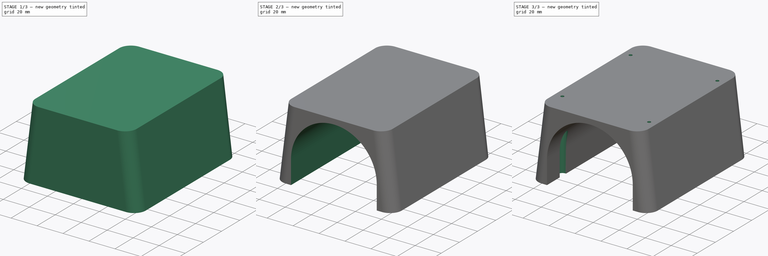
[diagram: build sequence overview — one tinted view per stage of 3, left to right]
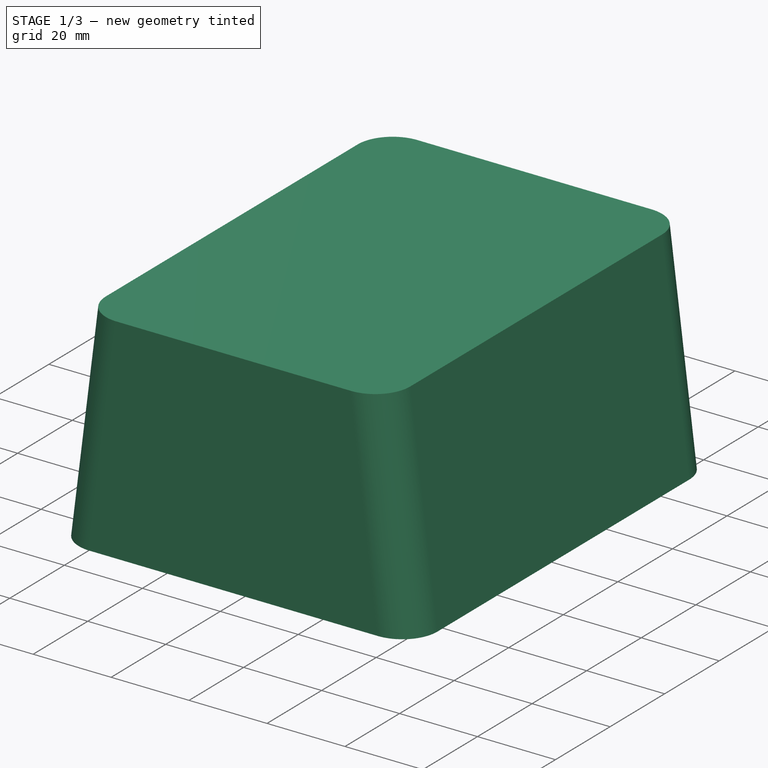
[diagram: stage 1 of 3 — iso view after this stage's code; geometry added in this stage tinted green]
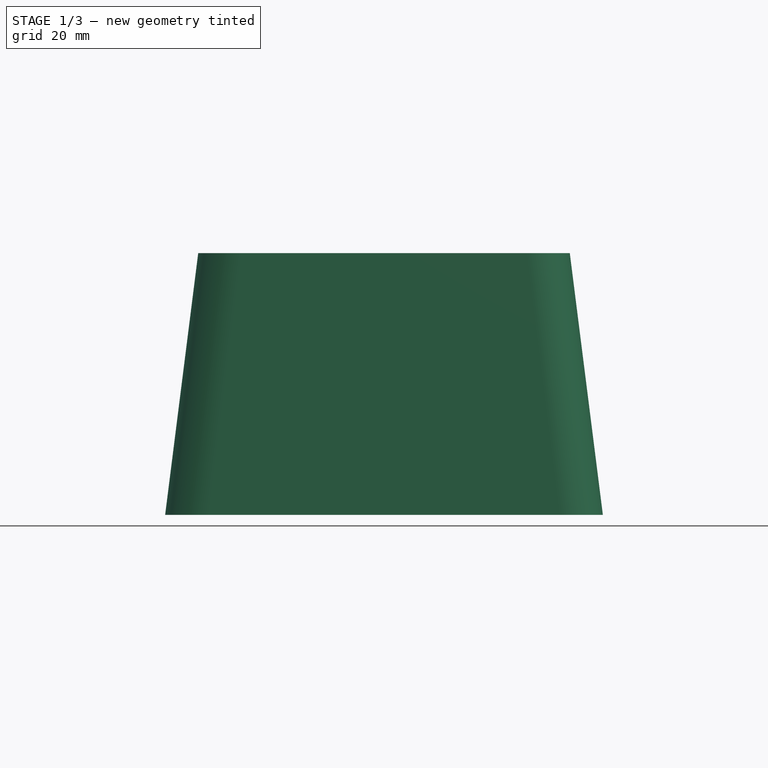
[diagram: stage 1 of 3 — front view after this stage's code; geometry added in this stage tinted green]
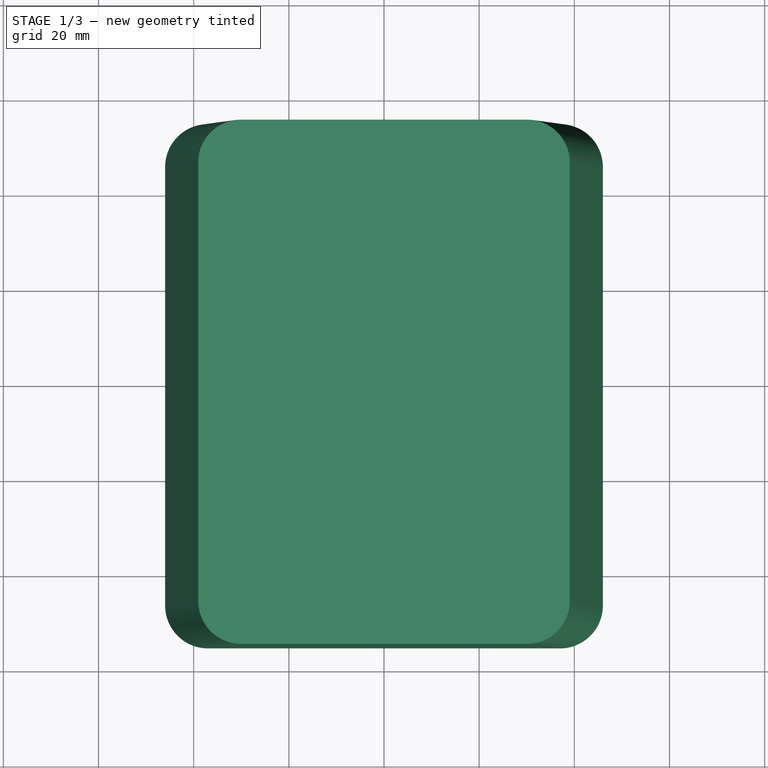
[diagram: stage 1 of 3 — top view after this stage's code; geometry added in this stage tinted green]
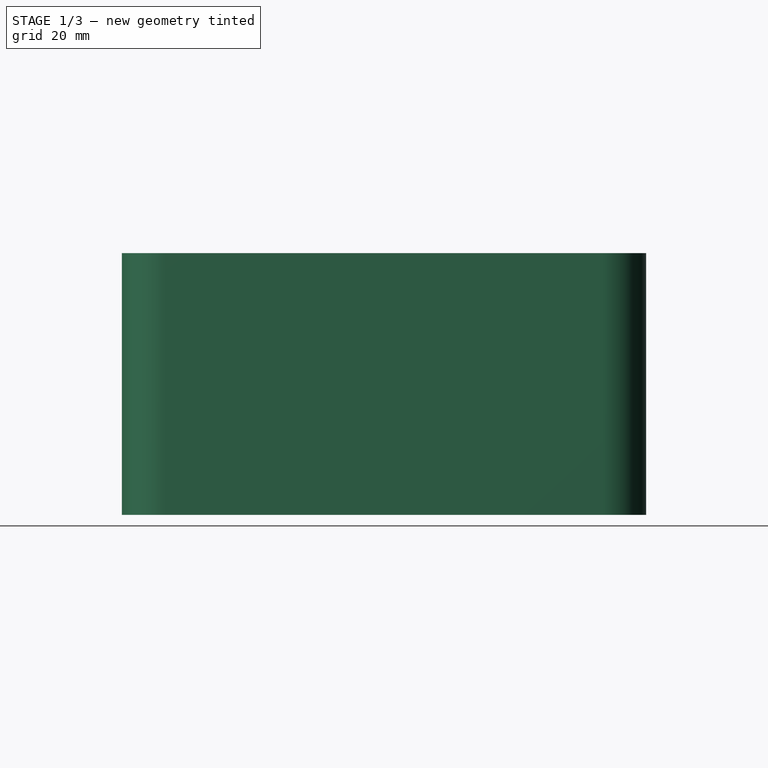
[diagram: stage 1 of 3 — right view after this stage's code; geometry added in this stage tinted green]
FCSTD DOCUMENT  (FreeCAD 0.18R4 (GitTag))
Label: uBikeBase
License: All rights reserved
LicenseURL: http://en.wikipedia.org/wiki/All_rights_reserved
objects: Sketcher::SketchObject×6, PartDesign::Pocket×4, Part::Loft×1, PartDesign::FeatureBase×1, PartDesign::Body×1
note: 17 computed .brp shape members not serialized (recipe doc carries the construction recipe); baked Part::Feature solids carry a one-line shape summary decoded from their .brp

FEATURE [Sketcher::SketchObject] Sketch
  MapMode = 5
  Support = -> [XY_Plane]
  sketch-geometry (8):
    g0: LineSegment StartX=-37 StartY=55.1 StartZ=0 EndX=37 EndY=55.1 EndZ=0
    g1: LineSegment StartX=46 StartY=46.1 StartZ=0 EndX=46 EndY=-46.1 EndZ=0
    g2: LineSegment StartX=37 StartY=-55.1 StartZ=0 EndX=-37 EndY=-55.1 EndZ=0
    g3: LineSegment StartX=-46 StartY=-46.1 StartZ=0 EndX=-46 EndY=46.1 EndZ=0
    g4: ArcOfCircle CenterX=37 CenterY=46.1 CenterZ=0 NormalX=0 NormalY=0 NormalZ=1 AngleXU=0 Radius=9 StartAngle=0 EndAngle=1.5708
    g5: ArcOfCircle CenterX=37 CenterY=-46.1 CenterZ=0 NormalX=0 NormalY=0 NormalZ=1 AngleXU=0 Radius=9 StartAngle=4.71239 EndAngle=6.28319
    g6: ArcOfCircle CenterX=-37 CenterY=-46.1 CenterZ=0 NormalX=0 NormalY=0 NormalZ=1 AngleXU=0 Radius=9 StartAngle=3.14159 EndAngle=4.71239
    g7: ArcOfCircle CenterX=-37 CenterY=46.1 CenterZ=0 NormalX=0 NormalY=0 NormalZ=1 AngleXU=0 Radius=9 StartAngle=1.5708 EndAngle=3.14159
  constraints (20):
    c: Horizontal(g0)
    c: Horizontal(g2)
    c: Vertical(g1)
    c: Vertical(g3)
    c: Tangent(g0,g4) = 1.5708
    c: Tangent(g1,g4) = 1.5708
    c: Tangent(g1,g5) = 1.5708
    c: Tangent(g2,g5) = 1.5708
    c: Tangent(g2,g6) = 1.5708
    c: Tangent(g3,g6) = 1.5708
    c: Tangent(g3,g7) = 1.5708
    c: Tangent(g0,g7) = 1.5708
    c: Radius(g7) = 9
    c: Equal(g7,g4)
    c: Equal(g7,g5)
    c: Equal(g7,g6)
    c: DistanceX(g3,g1) = 92
    c: DistanceY(g2,g0) = 110.2
    c: DistanceY(g-1,g0) = 55.1
    c: DistanceX(g3,g-1) = 46
FEATURE [Sketcher::SketchObject] Sketch001
  AttachmentOffset = pos=(0,0,55) rot=(0,0,1;0rad)
  MapMode = 5
  Placement = pos=(0,0,55) rot=(0,0,1;0rad)
  Support = -> [XY_Plane]
  sketch-geometry (8):
    g0: LineSegment StartX=-30.05 StartY=55.1 StartZ=0 EndX=30.05 EndY=55.1 EndZ=0
    g1: LineSegment StartX=39.05 StartY=46.1 StartZ=0 EndX=39.05 EndY=-46.1 EndZ=0
    g2: LineSegment StartX=30.05 StartY=-55.1 StartZ=0 EndX=-30.05 EndY=-55.1 EndZ=0
    g3: LineSegment StartX=-39.05 StartY=-46.1 StartZ=0 EndX=-39.05 EndY=46.1 EndZ=0
    g4: ArcOfCircle CenterX=30.05 CenterY=46.1 CenterZ=0 NormalX=0 NormalY=0 NormalZ=1 AngleXU=0 Radius=9 StartAngle=2e-16 EndAngle=1.5708
    g5: ArcOfCircle CenterX=30.05 CenterY=-46.1 CenterZ=0 NormalX=0 NormalY=0 NormalZ=1 AngleXU=0 Radius=9 StartAngle=4.71239 EndAngle=6.28319
    g6: ArcOfCircle CenterX=-30.05 CenterY=-46.1 CenterZ=0 NormalX=0 NormalY=0 NormalZ=1 AngleXU=0 Radius=9 StartAngle=3.14159 EndAngle=4.71239
    g7: ArcOfCircle CenterX=-30.05 CenterY=46.1 CenterZ=0 NormalX=0 NormalY=0 NormalZ=1 AngleXU=0 Radius=9 StartAngle=1.5708 EndAngle=3.14159
  constraints (20):
    c: Horizontal(g0)
    c: Horizontal(g2)
    c: Vertical(g1)
    c: Vertical(g3)
    c: Tangent(g0,g4) = 1.5708
    c: Tangent(g1,g4) = 1.5708
    c: Tangent(g1,g5) = 1.5708
    c: Tangent(g2,g5) = 1.5708
    c: Tangent(g2,g6) = 1.5708
    c: Tangent(g3,g6) = 1.5708
    c: Tangent(g3,g7) = 1.5708
    c: Tangent(g0,g7) = 1.5708
    c: Radius(g7) = 9
    c: Equal(g7,g4)
    c: Equal(g7,g5)
    c: Equal(g7,g6)
    c: DistanceY(g2,g0) = 110.2
    c: DistanceY(g-1,g0) = 55.1
    c: DistanceX(g3,g1) = 78.1
    c: DistanceX(g3,g-1) = 39.05
FEATURE [Part::Loft] Loft
  Closed = false
  MaxDegree = 5
  Ruled = false
  Sections = -> [Sketch,Sketch001]
  Solid = true
FEATURE [PartDesign::FeatureBase] BaseFeature
  BaseFeature = -> Loft
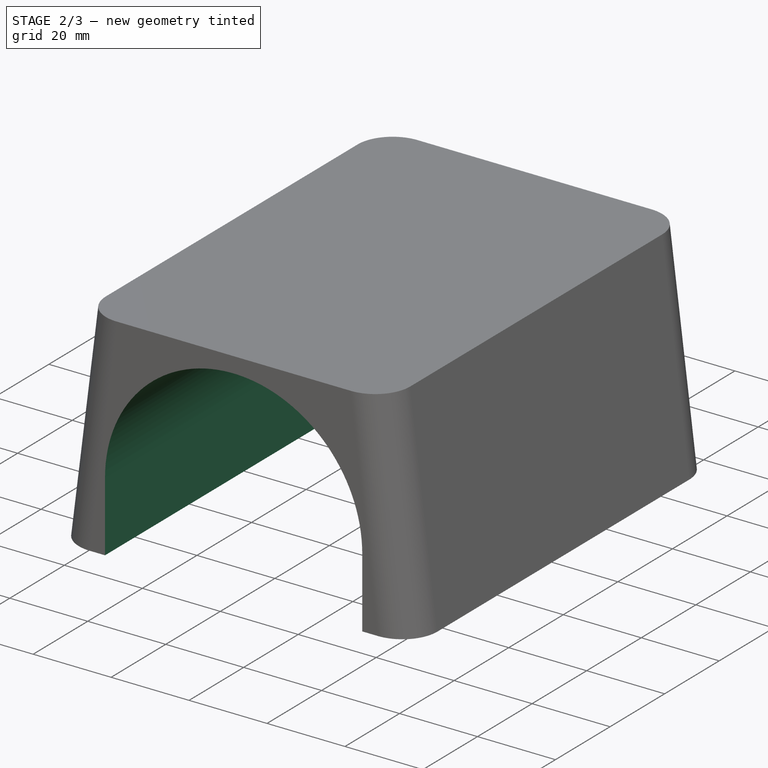
[diagram: stage 2 of 3 — iso view after this stage's code; geometry added in this stage tinted green]
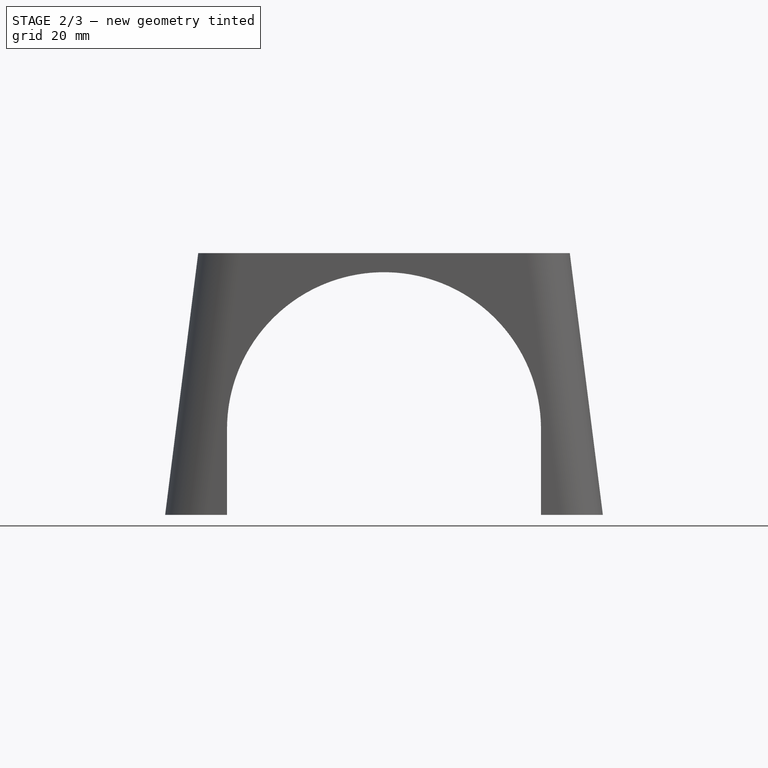
[diagram: stage 2 of 3 — front view after this stage's code; geometry added in this stage tinted green]
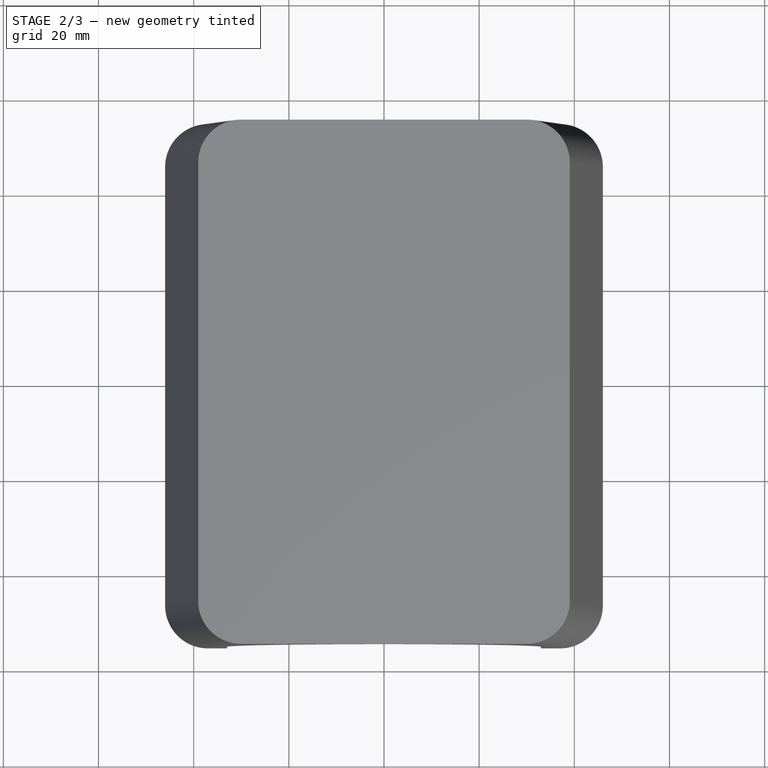
[diagram: stage 2 of 3 — top view after this stage's code; geometry added in this stage tinted green]
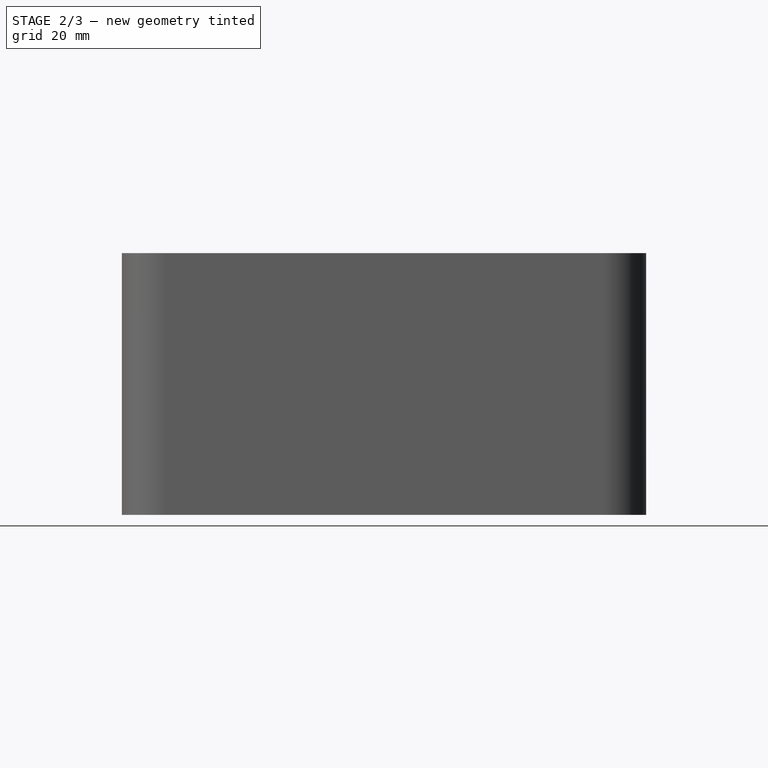
[diagram: stage 2 of 3 — right view after this stage's code; geometry added in this stage tinted green]
FEATURE [Sketcher::SketchObject] Sketch002
  ExternalGeometry = -> [BaseFeature]
  MapMode = 5
  Placement = pos=(0,-55.1,1.637e-13) rot=(1,0,0;1.5708rad)
  Support = -> [BaseFeature]
  sketch-geometry (6):
    g0: LineSegment [constr] StartX=-33 StartY=18 StartZ=0 EndX=33 EndY=18 EndZ=0
    g1: LineSegment StartX=33 StartY=18 StartZ=0 EndX=33 EndY=0 EndZ=0
    g2: LineSegment StartX=33 StartY=0 StartZ=0 EndX=-33 EndY=0 EndZ=0
    g3: LineSegment StartX=-33 StartY=0 StartZ=0 EndX=-33 EndY=18 EndZ=0
    g4: ArcOfCircle CenterX=0 CenterY=18 CenterZ=0 NormalX=0 NormalY=0 NormalZ=1 AngleXU=0 Radius=33 StartAngle=1.6766e-12 EndAngle=3.14159
    g5: GeomPoint X=0 Y=51 Z=0
  constraints (17):
    c: Coincident(g0,g1)
    c: Coincident(g1,g2)
    c: Coincident(g2,g3)
    c: Coincident(g3,g0)
    c: Horizontal(g0)
    c: Horizontal(g2)
    c: Vertical(g1)
    c: Vertical(g3)
    c: Coincident(g0,g4)
    c: Coincident(g0,g4)
    c: PointOnObject(g4,g0)
    c: PointOnObject(g-1,g2)
    c: PointOnObject(g4,g-2)
    c: DistanceX(g1,g-3) = 13
    c: PointOnObject(g5,g-2)
    c: PointOnObject(g5,g4)
    c: DistanceY(g5,g-5) = 4
FEATURE [PartDesign::Pocket] Pocket
  BaseFeature = -> BaseFeature
  Length = 5
  Length2 = 100
  Profile = -> Sketch002
  Type = 1
FEATURE [Sketcher::SketchObject] Sketch003
  MapMode = 5
  Placement = pos=(0,0,0) rot=(1,0,0;3.14159rad)
  Support = -> [Pocket]
  sketch-geometry (8):
    g0: LineSegment [constr] StartX=-37.95 StartY=41.3 StartZ=0 EndX=37.95 EndY=41.3 EndZ=0
    g1: LineSegment [constr] StartX=37.95 StartY=41.3 StartZ=0 EndX=37.95 EndY=-41.3 EndZ=0
    g2: LineSegment [constr] StartX=37.95 StartY=-41.3 StartZ=0 EndX=-37.95 EndY=-41.3 EndZ=0
    g3: LineSegment [constr] StartX=-37.95 StartY=-41.3 StartZ=0 EndX=-37.95 EndY=41.3 EndZ=0
    g4: Circle CenterX=-37.95 CenterY=41.3 CenterZ=0 NormalX=0 NormalY=0 NormalZ=1 AngleXU=0 Radius=1.95
    g5: Circle CenterX=-37.95 CenterY=-41.3 CenterZ=0 NormalX=0 NormalY=0 NormalZ=1 AngleXU=0 Radius=1.95
    g6: Circle CenterX=37.95 CenterY=-41.3 CenterZ=0 NormalX=0 NormalY=0 NormalZ=1 AngleXU=0 Radius=1.95
    g7: Circle CenterX=37.95 CenterY=41.3 CenterZ=0 NormalX=0 NormalY=0 NormalZ=1 AngleXU=0 Radius=1.95
  constraints (20):
    c: Coincident(g0,g1)
    c: Coincident(g1,g2)
    c: Coincident(g2,g3)
    c: Coincident(g3,g0)
    c: Horizontal(g0)
    c: Horizontal(g2)
    c: Vertical(g1)
    c: Vertical(g3)
    c: DistanceX(g0,g0) = 75.9
    c: DistanceY(g3,g3) = 82.6
    c: DistanceY(g-1,g0) = 41.3
    c: DistanceX(g0,g-1) = 37.95
    c: Coincident(g7,g0)
    c: Coincident(g4,g0)
    c: Coincident(g5,g2)
    c: Coincident(g6,g1)
    c: Radius(g5) = 1.95
    c: Equal(g5,g6)
    c: Equal(g5,g7)
    c: Equal(g5,g4)
FEATURE [PartDesign::Pocket] Pocket001
  BaseFeature = -> Pocket
  Length = 30
  Length2 = 100
  Profile = -> Sketch003
  Type = 0
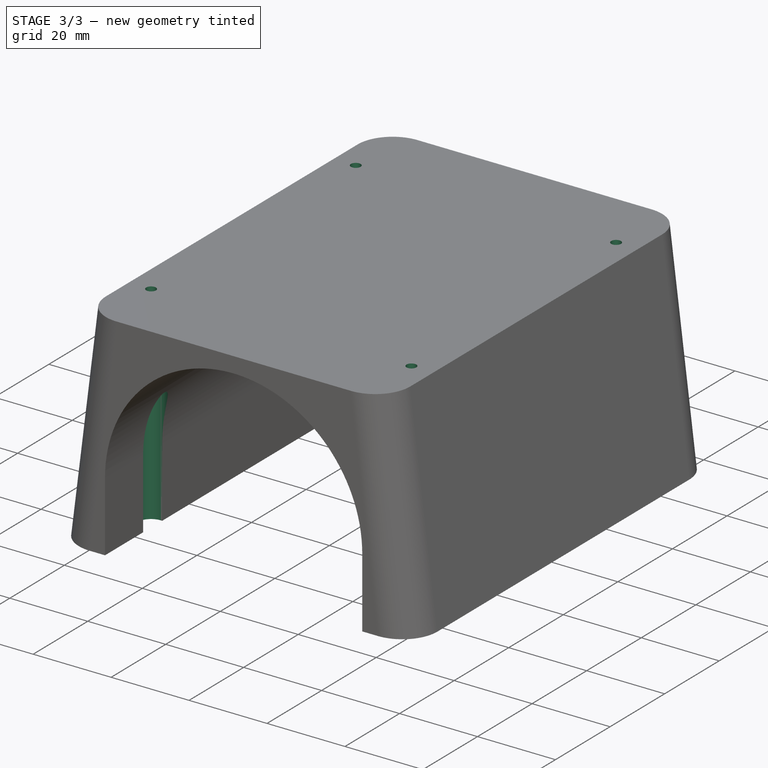
[diagram: stage 3 of 3 — iso view after this stage's code; geometry added in this stage tinted green]
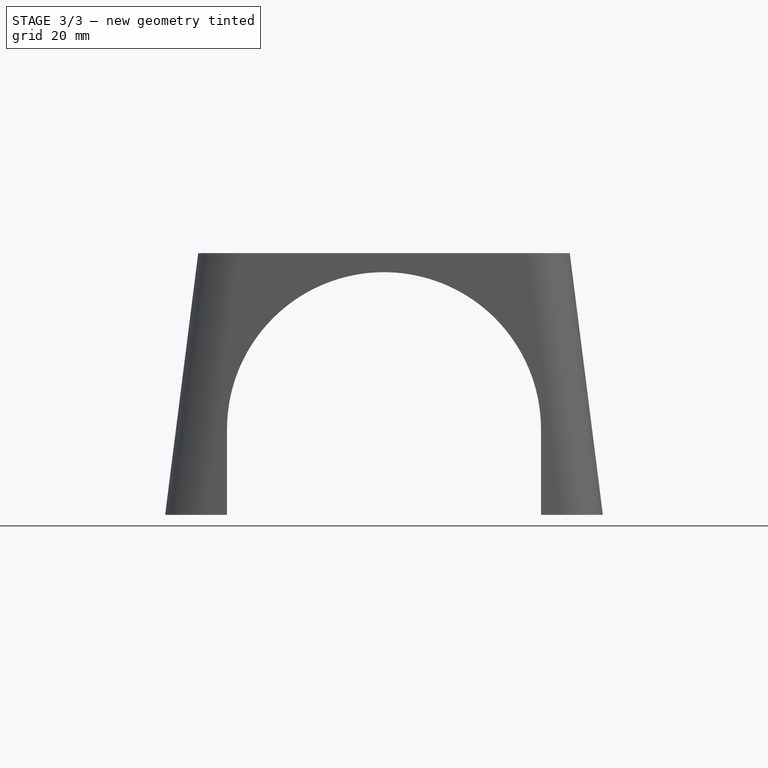
[diagram: stage 3 of 3 — front view after this stage's code; geometry added in this stage tinted green]
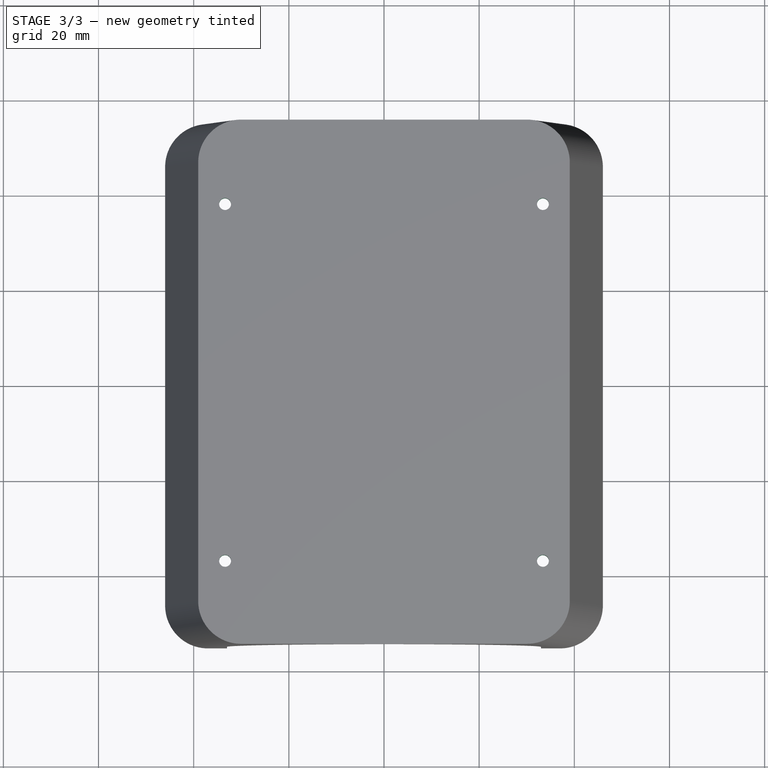
[diagram: stage 3 of 3 — top view after this stage's code; geometry added in this stage tinted green]
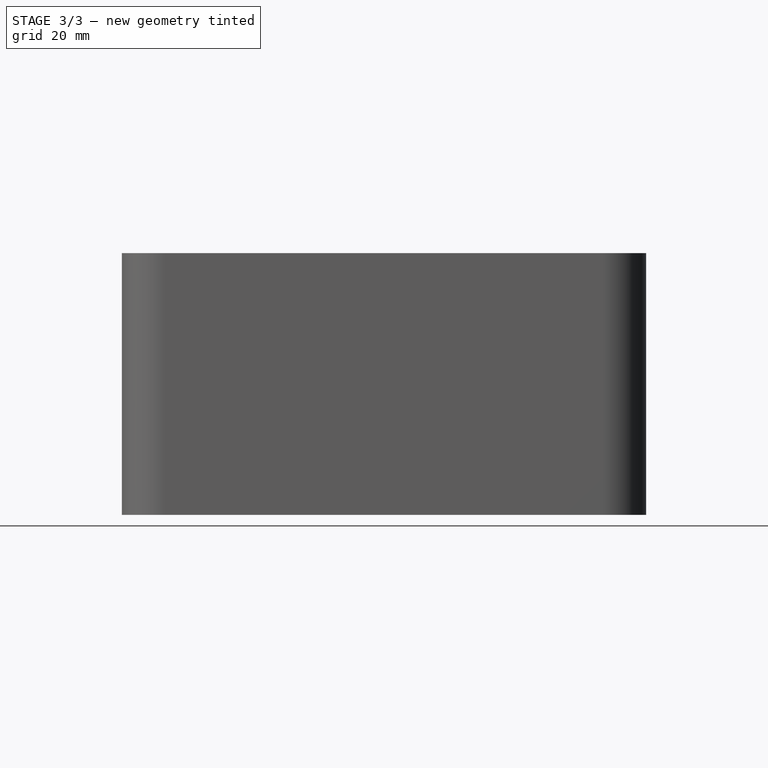
[diagram: stage 3 of 3 — right view after this stage's code; geometry added in this stage tinted green]
FEATURE [Sketcher::SketchObject] Sketch004
  ExternalGeometry = -> [Sketch001]
  MapMode = 5
  Placement = pos=(0,0,55) rot=(0,0,1;0rad)
  Support = -> [Pocket001]
  sketch-geometry (8):
    g0: LineSegment [constr] StartX=-33.4 StartY=37.35 StartZ=0 EndX=33.4 EndY=37.35 EndZ=0
    g1: LineSegment [constr] StartX=33.4 StartY=37.35 StartZ=0 EndX=33.4 EndY=-37.65 EndZ=0
    g2: LineSegment [constr] StartX=33.4 StartY=-37.65 StartZ=0 EndX=-33.4 EndY=-37.65 EndZ=0
    g3: LineSegment [constr] StartX=-33.4 StartY=-37.65 StartZ=0 EndX=-33.4 EndY=37.35 EndZ=0
    g4: Circle CenterX=-33.4 CenterY=37.35 CenterZ=0 NormalX=0 NormalY=0 NormalZ=1 AngleXU=0 Radius=1.25
    g5: Circle CenterX=33.4 CenterY=37.35 CenterZ=0 NormalX=0 NormalY=0 NormalZ=1 AngleXU=0 Radius=1.25
    g6: Circle CenterX=33.4 CenterY=-37.65 CenterZ=0 NormalX=0 NormalY=0 NormalZ=1 AngleXU=0 Radius=1.25
    g7: Circle CenterX=-33.4 CenterY=-37.65 CenterZ=0 NormalX=0 NormalY=0 NormalZ=1 AngleXU=0 Radius=1.25
  constraints (20):
    c: Coincident(g0,g1)
    c: Coincident(g1,g2)
    c: Coincident(g2,g3)
    c: Coincident(g3,g0)
    c: Horizontal(g0)
    c: Horizontal(g2)
    c: Vertical(g1)
    c: Vertical(g3)
    c: DistanceY(g1,g1) = 75
    c: DistanceX(g0,g0) = 66.8
    c: DistanceX(g0,g-1) = 33.4
    c: Radius(g4) = 1.25
    c: Equal(g4,g5)
    c: Equal(g4,g6)
    c: Equal(g4,g7)
    c: DistanceY(g0,g-3) = 17.75
    c: Coincident(g0,g4)
    c: Coincident(g5,g0)
    c: Coincident(g7,g2)
    c: Coincident(g6,g1)
FEATURE [PartDesign::Pocket] Pocket002
  BaseFeature = -> Pocket001
  Length = 20
  Length2 = 100
  Profile = -> Sketch004
  Type = 1
FEATURE [Sketcher::SketchObject] Sketch005
  ExternalGeometry = -> [Pocket002]
  MapMode = 5
  Placement = pos=(0,0,0) rot=(1,0,0;3.14159rad)
  Support = -> [Pocket002]
  sketch-geometry (4):
    g0: Circle CenterX=-33.4 CenterY=-37.35 CenterZ=0 NormalX=0 NormalY=0 NormalZ=1 AngleXU=0 Radius=3.5
    g1: Circle CenterX=33.4 CenterY=-37.35 CenterZ=0 NormalX=0 NormalY=0 NormalZ=1 AngleXU=0 Radius=3.5
    g2: Circle CenterX=-33.4 CenterY=37.65 CenterZ=0 NormalX=0 NormalY=0 NormalZ=1 AngleXU=0 Radius=3.5
    g3: Circle CenterX=33.4 CenterY=37.65 CenterZ=0 NormalX=0 NormalY=0 NormalZ=1 AngleXU=0 Radius=3.5
  constraints (8):
    c: Coincident(g3,g-3)
    c: Coincident(g2,g-4)
    c: Coincident(g0,g-5)
    c: Coincident(g1,g-6)
    c: Radius(g1) = 3.5
    c: Equal(g1,g3)
    c: Equal(g1,g2)
    c: Equal(g1,g0)
FEATURE [PartDesign::Pocket] Pocket003
  BaseFeature = -> Pocket002
  Length = 50
  Length2 = 100
  Profile = -> Sketch005
  Type = 0
FEATURE [PartDesign::Body] Body
  BaseFeature = -> Loft
  Group = -> [BaseFeature,Sketch,Sketch001,Sketch002,Pocket,Sketch003,Pocket001,Sketch004,Pocket002,Sketch005,Pocket003]
  Origin = -> Origin
  Tip = -> Pocket003
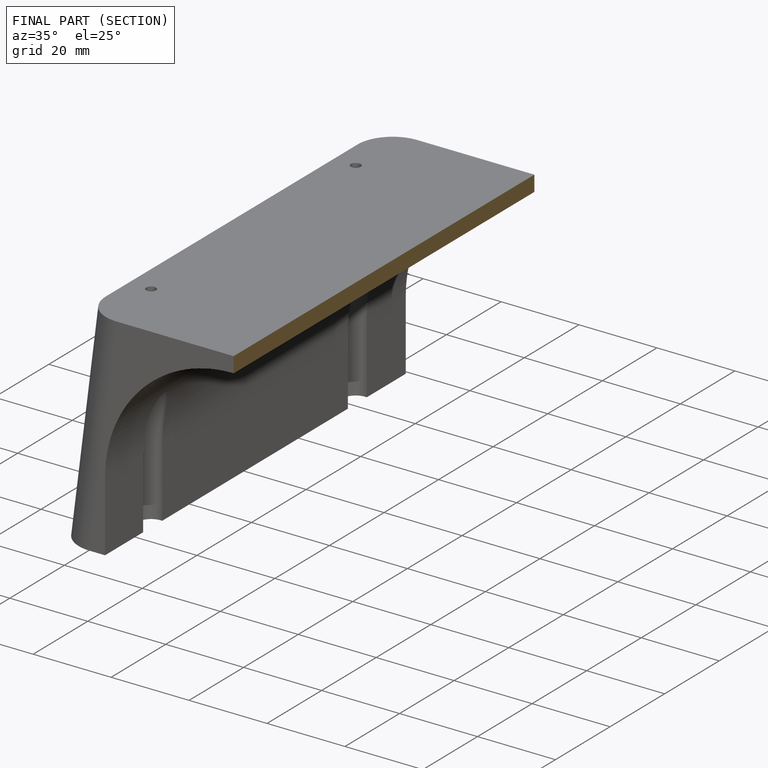
[diagram: finished part — half-section view (interior)]
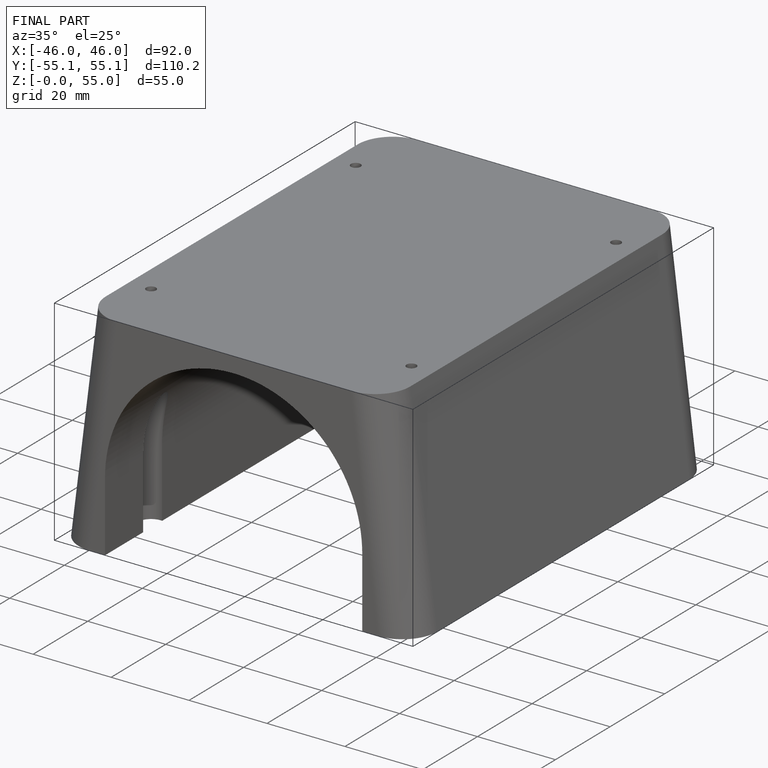
[diagram: finished part — iso view with bounding-box wireframe]
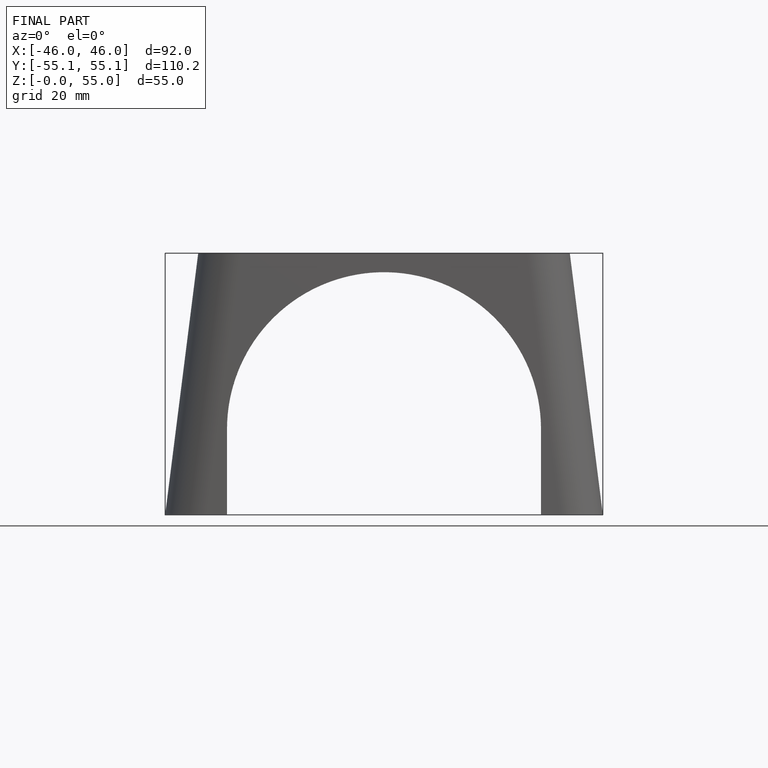
[diagram: finished part — front view with bounding-box wireframe]
